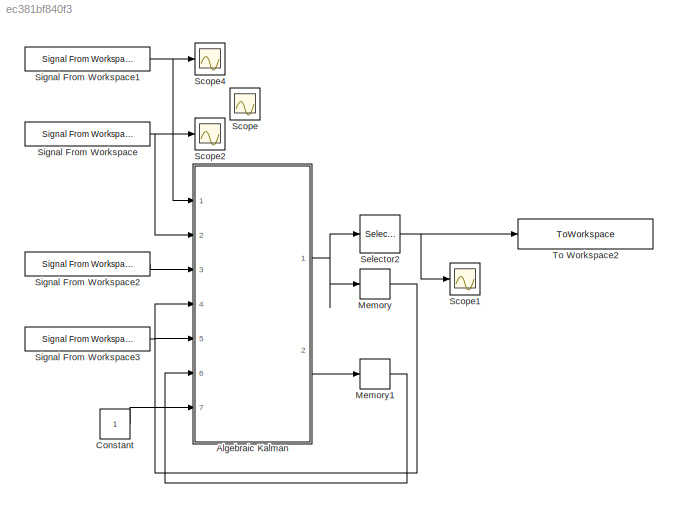
MODEL slx_ec381bf840f3
KIND model
CONFIG AbsTol = auto
CONFIG EnableMultiTasking = off
CONFIG FixedStep = 0.01
CONFIG MaxStep = auto
CONFIG MinStep = auto
CONFIG RelTol = 1e-3
CONFIG SampleTimeConstraint = Unconstrained
CONFIG Solver = VariableStepAuto
CONFIG SolverName = VariableStepAuto
CONFIG StartTime = 0.0
CONFIG StopTime = 4
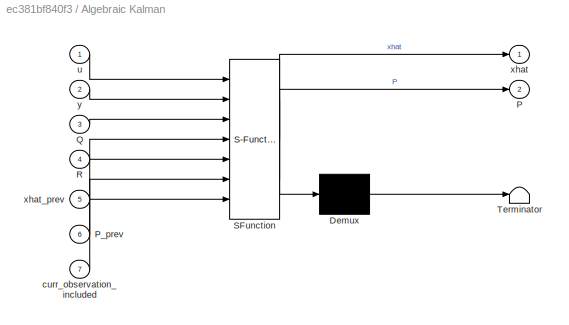
BLOCK [SubSystem] Algebraic Kalman
  ErrorFcn = Stateflow.Translate.translate
  PermitHierarchicalResolution = ExplicitOnly
  Ports = [7, 2]
  RequestExecContextInheritance = off
  SFBlockType = MATLAB Function
  TreatAsAtomicUnit = on
BLOCK [Demux] Algebraic Kalman/ Demux 
  Outputs = 1
  Ports = [1, 1]
BLOCK [S-Function] Algebraic Kalman/ SFunction 
  EnableBusSupport = on
  FunctionName = sf_sfun
  Parameters = A,B,C,Gm
  PortCounts = [7 3]
  Ports = [7, 3]
  SFcnIsStateOwnerBlock = off
  SFunctionDeploymentMode = off
  Tag = Stateflow S-Function 2
BLOCK [Terminator] Algebraic Kalman/ Terminator 
BLOCK [Outport] Algebraic Kalman/P
  IconDisplay = Port number
  Port = 2
BLOCK [Inport] Algebraic Kalman/P_prev
  IconDisplay = Port number
  Port = 6
BLOCK [Inport] Algebraic Kalman/Q
  IconDisplay = Port number
  Port = 3
BLOCK [Inport] Algebraic Kalman/R
  IconDisplay = Port number
  Port = 4
BLOCK [Inport] Algebraic Kalman/curr_observation_included
  IconDisplay = Port number
  Port = 7
BLOCK [Inport] Algebraic Kalman/u
  IconDisplay = Port number
BLOCK [Outport] Algebraic Kalman/xhat
  IconDisplay = Port number
BLOCK [Inport] Algebraic Kalman/xhat_prev
  IconDisplay = Port number
  Port = 5
BLOCK [Inport] Algebraic Kalman/y
  IconDisplay = Port number
  Port = 2
BLOCK [Constant] Constant
BLOCK [Memory] Memory
  InheritSampleTime = on
  InitialCondition = x0
BLOCK [Memory] Memory1
  InheritSampleTime = on
  InitialCondition = P0
BLOCK [Scope] Scope
  Floating = off
  IOType = viewer
  NumInputPorts = 1
  Ports = []
  ScopeSpecificationString = Simulink.scopes.TimeScopeBlockCfg('CurrentConfiguration', extmgr.ConfigurationSet(extmgr.Configuration('Core','General UI',true,'FigureColor',[0.941176470588235 0.941176470588235 0.941176470588235]),extmgr.Configuration('Core','Source UI',true),extmgr.Configuration('Sources','WiredSimulink',true),extmgr.Configuration('Visuals','Time Domain',true,'SerializedDisplays',{struct('MinYLimReal','-0.28512...<+2421ch>
BLOCK [Scope] Scope1
  Floating = off
  NumInputPorts = 1
  Ports = [1]
  ScopeSpecificationString = Simulink.scopes.TimeScopeBlockCfg('CurrentConfiguration', extmgr.ConfigurationSet(extmgr.Configuration('Core','General UI',true),extmgr.Configuration('Core','Source UI',true),extmgr.Configuration('Sources','WiredSimulink',true,'DataLoggingVariableName','ScopeData1'),extmgr.Configuration('Visuals','Time Domain',true,'SerializedDisplays',{struct('MinYLimReal','-0.10932','MaxYLimReal','0.18527','YLab...<+1589ch>
BLOCK [Scope] Scope2
  Floating = off
  NumInputPorts = 1
  Ports = [1]
  ScopeSpecificationString = Simulink.scopes.TimeScopeBlockCfg('CurrentConfiguration', extmgr.ConfigurationSet(extmgr.Configuration('Core','General UI',true),extmgr.Configuration('Core','Source UI',true),extmgr.Configuration('Sources','WiredSimulink',true,'DataLoggingVariableName','ScopeData2'),extmgr.Configuration('Visuals','Time Domain',true,'SerializedDisplays',{struct('MinYLimReal','-0.10989','MaxYLimReal','0.14609','YLab...<+1453ch>
BLOCK [Scope] Scope4
  Floating = off
  NumInputPorts = 1
  Ports = [1]
  ScopeSpecificationString = Simulink.scopes.TimeScopeBlockCfg('CurrentConfiguration', extmgr.ConfigurationSet(extmgr.Configuration('Core','General UI',true),extmgr.Configuration('Core','Source UI',true),extmgr.Configuration('Sources','WiredSimulink',true,'DataLoggingVariableName','ScopeData4'),extmgr.Configuration('Visuals','Time Domain',true,'SerializedDisplays',{struct('MinYLimReal','-0.125','MaxYLimReal','1.125','YLabelRe...<+1398ch>
BLOCK [Selector] Selector2
  IndexOptions = Index vector (dialog)
  Indices = [1]
  InputPortWidth = 6
  OutputSizes = 1
  Ports = [1, 1]
BLOCK [Reference] Signal From Workspace  REF=dspsrcs4/Signal From
Workspace
  Ports = [0, 1]
  SourceBlock = dspsrcs4/Signal From\nWorkspace
  SourceProductBaseCode = DS
  SourceProductName = DSP System Toolbox
  SourceType = Signal From Workspace
BLOCK [Reference] Signal From Workspace1  REF=dspsrcs4/Signal From
Workspace
  Ports = [0, 1]
  SourceBlock = dspsrcs4/Signal From\nWorkspace
  SourceProductBaseCode = DS
  SourceProductName = DSP System Toolbox
  SourceType = Signal From Workspace
BLOCK [Reference] Signal From Workspace2  REF=dspsrcs4/Signal From
Workspace
  Ports = [0, 1]
  SourceBlock = dspsrcs4/Signal From\nWorkspace
  SourceProductBaseCode = DS
  SourceProductName = DSP System Toolbox
  SourceType = Signal From Workspace
BLOCK [Reference] Signal From Workspace3  REF=dspsrcs4/Signal From
Workspace
  Ports = [0, 1]
  SourceBlock = dspsrcs4/Signal From\nWorkspace
  SourceProductBaseCode = DS
  SourceProductName = DSP System Toolbox
  SourceType = Signal From Workspace
BLOCK [ToWorkspace] To Workspace2
  MaxDataPoints = inf
  Ports = [1]
  SampleTime = -1
  Save2DSignal = 2-D array (concatenate along first dimension)
  VariableName = output_data_simple
NET Algebraic Kalman:1 -> Memory:1, Selector2:1
LINE Algebraic Kalman:2 -> Memory1:1
LINE Constant:1 -> Algebraic Kalman:7
LINE Memory1:1 -> Algebraic Kalman:6
LINE Memory:1 -> Algebraic Kalman:5
NET Selector2:1 -> Scope1:1, To Workspace2:1
NET Signal From Workspace1:1 -> Algebraic Kalman:1, Scope4:1
LINE Signal From Workspace2:1 -> Algebraic Kalman:3
LINE Signal From Workspace3:1 -> Algebraic Kalman:4
NET Signal From Workspace:1 -> Algebraic Kalman:2, Scope2:1
note: NET lines group one-source signal fan-out (src -> all destinations, sorted); 1:1 wires keep LINE
CHART Algebraic Kalman states=1 transitions=1
  STATE_LABEL 'eML_blk_kernel()'
  STATE_LABEL "SCRIPT:\nfunction [xhat, P] = algebraic_kalman(u, y, Q, R, xhat_prev, P_prev, curr_observation_included, A, B, C, Gm)\nx_time = A*xhat_prev + B*u;\nP_time = A*P_prev*A'+ Gm*Q*Gm';\n\nK = P_time*(C')*pinv(C*P_time*C' + R);\nepsilon = y - C*x_time;\n\nif curr_observation_included\n    xhat = x_time + K*epsilon;\n    P = P_time - K*C*P_time;\nelse\n    xhat = x_time;\n    P = P_time;\nend"
